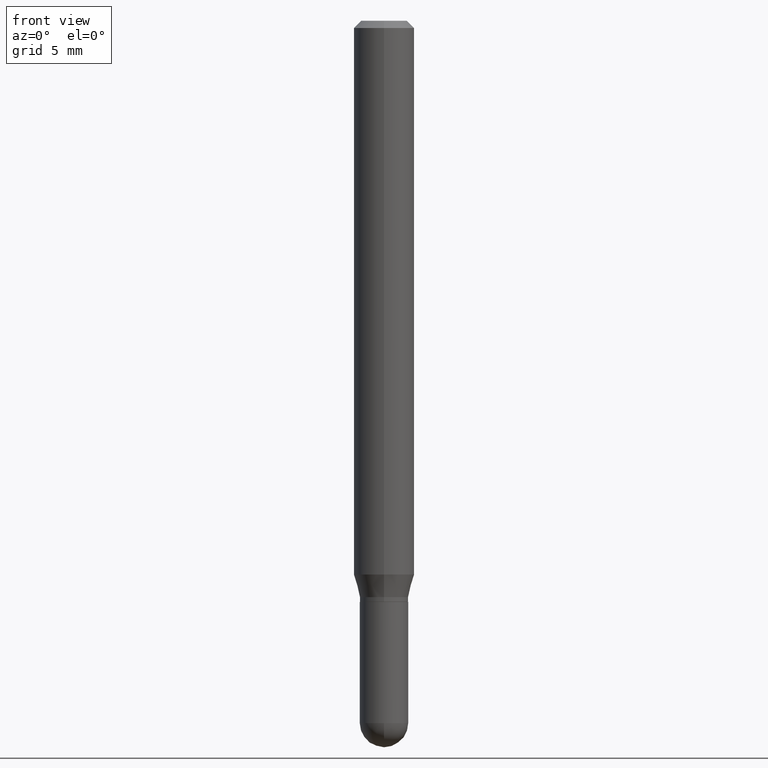
[diagram: clean part render]
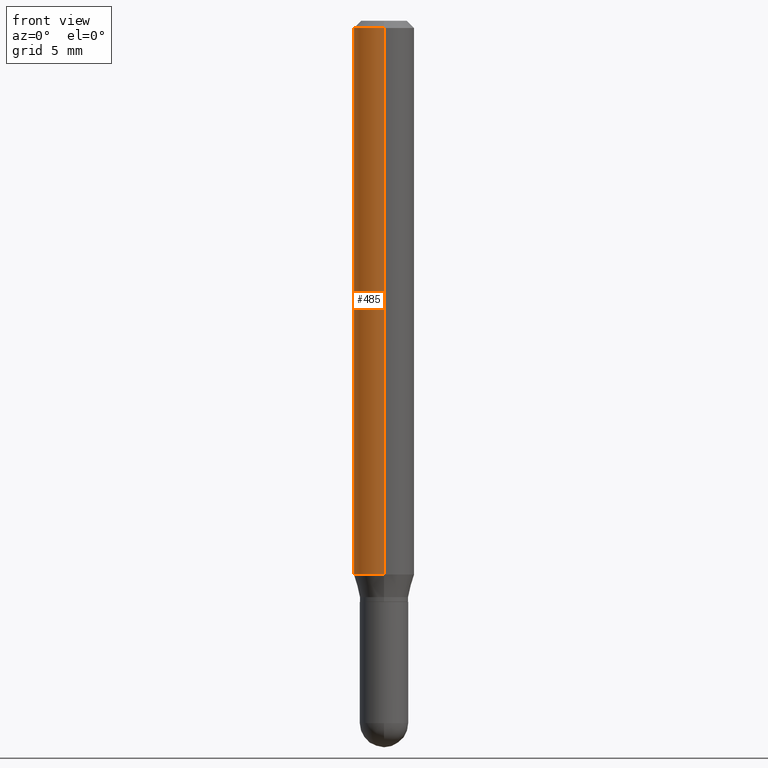
[diagram: same view with one face highlighted and labeled with its STEP entity id]
A machine part, front view. The second image highlights one B-rep face of the part: STEP entity #485.
In plain terms, the highlighted cylindrical surface (edge-blend (fillet) strip) has radius 1.5875 mm, axis along (-0, 0, 1).
Its self-contained STEP definition (entity closure, byte-faithful):
#33 = CARTESIAN_POINT ( 'NONE',  ( 4.440892098500904235E-16, 0.06249999999999599626, -1.143349364905390075 ) ) ;
#41 = DIRECTION ( 'NONE',  ( -6.982962677686265922E-15, -1.000000000000000000, 3.483106191921935554E-15 ) ) ;
#60 = ORIENTED_EDGE ( 'NONE', *, *, #133, .F. ) ;
#83 = CARTESIAN_POINT ( 'NONE',  ( 4.440892098500907193E-16, 0.06249999999999995143, -0.01500000000000054588 ) ) ;
#85 = CYLINDRICAL_SURFACE ( 'NONE', #151, 0.06250000000000000000 ) ;
#93 = FACE_OUTER_BOUND ( 'NONE', #287, .T. ) ;
#111 = DIRECTION ( 'NONE',  ( -6.982962677686265922E-15, -1.000000000000000000, 4.370956789862821150E-15 ) ) ;
#124 = DIRECTION ( 'NONE',  ( -2.445427275535626406E-29, 3.491540813097021947E-15, 1.000000000000000000 ) ) ;
#125 = CIRCLE ( 'NONE', #165, 0.06250000000000000000 ) ;
#133 = EDGE_CURVE ( 'NONE', #257, #209, #186, .T. ) ;
#151 = AXIS2_PLACEMENT_3D ( 'NONE', #172, #245, #282 ) ;
#159 = CARTESIAN_POINT ( 'NONE',  ( 2.795977722405976257E-29, -3.992050971195729009E-15, -1.143349364905389853 ) ) ;
#161 = ORIENTED_EDGE ( 'NONE', *, *, #345, .T. ) ;
#165 = AXIS2_PLACEMENT_3D ( 'NONE', #159, #312, #111 ) ;
#172 = CARTESIAN_POINT ( 'NONE',  ( 0.000000000000000000, 0.000000000000000000, 0.000000000000000000 ) ) ;
#181 = CARTESIAN_POINT ( 'NONE',  ( -4.364351673553637142E-16, -0.06250000000000399680, -1.143349364905389409 ) ) ;
#186 = CIRCLE ( 'NONE', #253, 0.06250000000000000000 ) ;
#195 = LINE ( 'NONE', #236, #267 ) ;
#209 = VERTEX_POINT ( 'NONE', #256 ) ;
#221 = ORIENTED_EDGE ( 'NONE', *, *, #331, .F. ) ;
#235 = VERTEX_POINT ( 'NONE', #181 ) ;
#236 = CARTESIAN_POINT ( 'NONE',  ( -4.364351673553916201E-16, -0.06250000000000000000, 2.182213008185638717E-16 ) ) ;
#245 = DIRECTION ( 'NONE',  ( -2.445427275535626406E-29, 3.491540813097021947E-15, 1.000000000000000000 ) ) ;
#253 = AXIS2_PLACEMENT_3D ( 'NONE', #479, #124, #41 ) ;
#256 = CARTESIAN_POINT ( 'NONE',  ( -4.364351673553912750E-16, -0.06250000000000005551, -0.01500000000000011047 ) ) ;
#257 = VERTEX_POINT ( 'NONE', #83 ) ;
#263 = VERTEX_POINT ( 'NONE', #33 ) ;
#267 = VECTOR ( 'NONE', #384, 39.37007874015748143 ) ;
#282 = DIRECTION ( 'NONE',  ( -6.982962677686265922E-15, -1.000000000000000000, 3.491540813097021947E-15 ) ) ;
#287 = EDGE_LOOP ( 'NONE', ( #221, #368, #161, #60 ) ) ;
#301 = VECTOR ( 'NONE', #423, 39.37007874015748143 ) ;
#311 = EDGE_CURVE ( 'NONE', #263, #235, #125, .T. ) ;
#312 = DIRECTION ( 'NONE',  ( -2.445427275535626406E-29, 3.491540813097021947E-15, 1.000000000000000000 ) ) ;
#331 = EDGE_CURVE ( 'NONE', #263, #257, #355, .T. ) ;
#345 = EDGE_CURVE ( 'NONE', #235, #209, #195, .T. ) ;
#355 = LINE ( 'NONE', #475, #301 ) ;
#368 = ORIENTED_EDGE ( 'NONE', *, *, #311, .T. ) ;
#384 = DIRECTION ( 'NONE',  ( -2.445427275535626686E-29, 3.491540813097021947E-15, 1.000000000000000000 ) ) ;
#423 = DIRECTION ( 'NONE',  ( -2.445427275535626686E-29, 3.491540813097021947E-15, 1.000000000000000000 ) ) ;
#475 = CARTESIAN_POINT ( 'NONE',  ( 4.440892098500625669E-16, 0.06250000000000000000, -2.182213008185638717E-16 ) ) ;
#479 = CARTESIAN_POINT ( 'NONE',  ( 3.668140913303519938E-31, -5.237311219645647553E-17, -0.01500000000000032904 ) ) ;
#485 = ADVANCED_FACE ( 'NONE', ( #93 ), #85, .T. ) ;